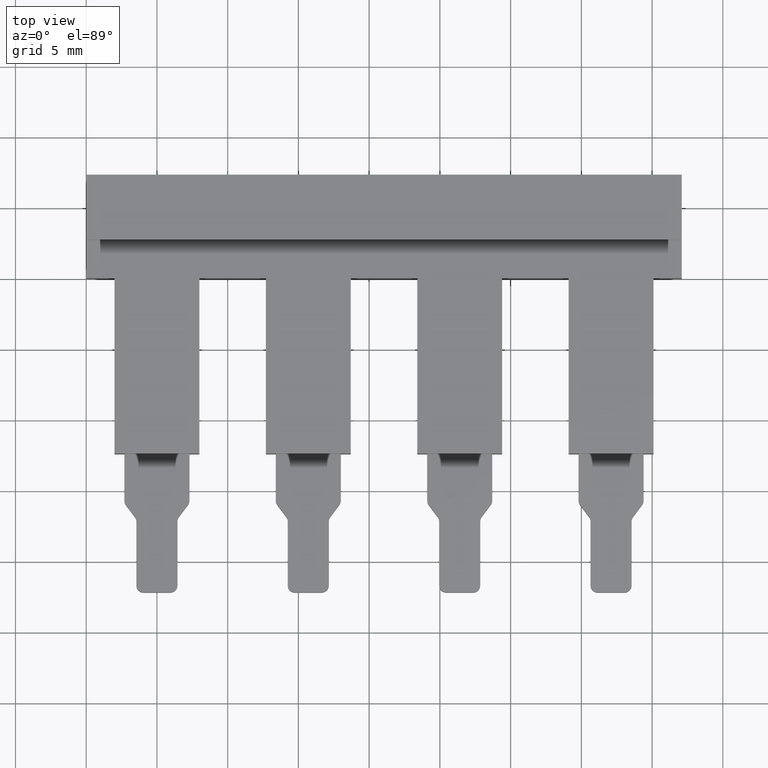
[diagram: clean part render]
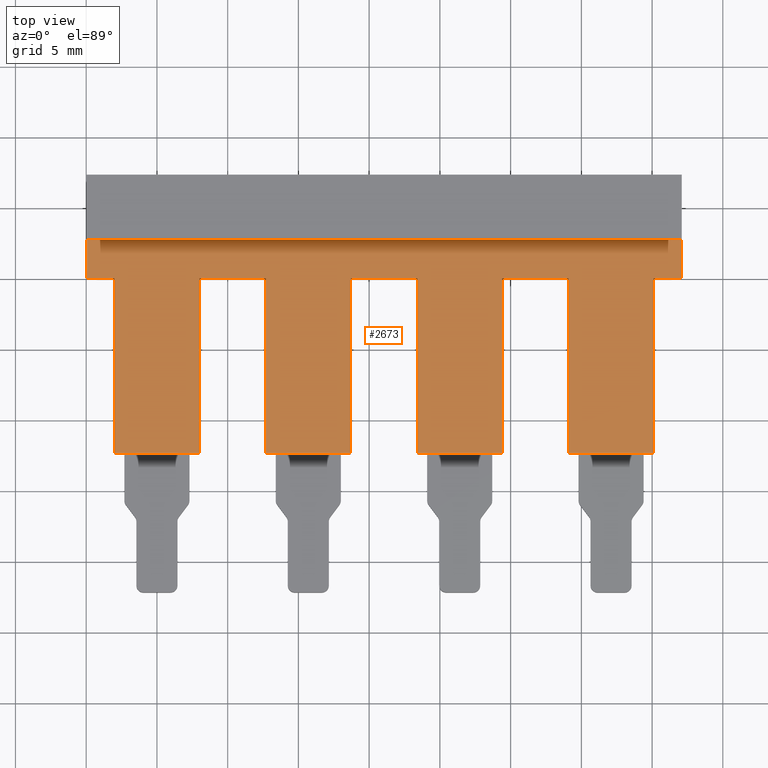
[diagram: same view with one face highlighted and labeled with its STEP entity id]
A machine part, top view. The second image highlights one B-rep face of the part: STEP entity #2673.
In plain terms, the highlighted planar face has unit normal (0, 0, 1).
Its self-contained STEP definition (entity closure, byte-faithful):
#549 = PLANE ( 'NONE',  #2332 ) ;
#550 = DIRECTION ( 'NONE',  ( 0.0000000000000000000, 0.0000000000000000000, 1.000000000000000000 ) ) ;
#555 = CARTESIAN_POINT ( 'NONE',  ( 29.39999999999999500, 4.173744683200197900E-015, 4.100000000000000500 ) ) ;
#560 = DIRECTION ( 'NONE',  ( 1.000000000000000000, 0.0000000000000000000, -0.0000000000000000000 ) ) ;
#587 = FACE_OUTER_BOUND ( 'NONE', #1447, .T. ) ;
#590 = CARTESIAN_POINT ( 'NONE',  ( 18.70000000000000300, -1.879018618104244700E-015, 4.100000000000000500 ) ) ;
#594 = DIRECTION ( 'NONE',  ( -3.016491377670779700E-016, 1.000000000000000000, -0.0000000000000000000 ) ) ;
#597 = LINE ( 'NONE', #602, #1990 ) ;
#598 = DIRECTION ( 'NONE',  ( 1.000000000000000000, 7.947176037020060600E-016, -0.0000000000000000000 ) ) ;
#602 = CARTESIAN_POINT ( 'NONE',  ( 42.09999999999999400, 7.300000000000006000, 4.100000000000000500 ) ) ;
#606 = LINE ( 'NONE', #617, #2003 ) ;
#607 = DIRECTION ( 'NONE',  ( -2.409338161078894500E-017, -1.000000000000000000, -0.0000000000000000000 ) ) ;
#609 = CARTESIAN_POINT ( 'NONE',  ( 34.10000000000000100, -12.49999999999999600, 4.100000000000000500 ) ) ;
#612 = DIRECTION ( 'NONE',  ( -1.000000000000000000, 0.0000000000000000000, 0.0000000000000000000 ) ) ;
#613 = DIRECTION ( 'NONE',  ( -0.0000000000000000000, -1.000000000000000000, -0.0000000000000000000 ) ) ;
#617 = CARTESIAN_POINT ( 'NONE',  ( 0.0000000000000000000, 7.299999999999999800, 4.100000000000000500 ) ) ;
#621 = CARTESIAN_POINT ( 'NONE',  ( 0.0000000000000000000, -12.40000000000000200, 4.099999999999999600 ) ) ;
#623 = CARTESIAN_POINT ( 'NONE',  ( 29.40000000000000200, -1.879018618104244700E-015, 4.100000000000000500 ) ) ;
#631 = DIRECTION ( 'NONE',  ( -2.775557561562890400E-016, 1.000000000000000000, -0.0000000000000000000 ) ) ;
#634 = LINE ( 'NONE', #647, #2071 ) ;
#635 = LINE ( 'NONE', #609, #2070 ) ;
#636 = LINE ( 'NONE', #623, #1998 ) ;
#640 = LINE ( 'NONE', #621, #2011 ) ;
#647 = CARTESIAN_POINT ( 'NONE',  ( 20.07069040994250000, -12.39999999999999900, 4.100000000000000500 ) ) ;
#672 = DIRECTION ( 'NONE',  ( -1.000000000000000000, 0.0000000000000000000, 0.0000000000000000000 ) ) ;
#975 = CARTESIAN_POINT ( 'NONE',  ( 40.10000000000000900, -12.39999999999999900, 4.100000000000000500 ) ) ;
#977 = CARTESIAN_POINT ( 'NONE',  ( 29.40000000000000900, -12.40000000000000000, 4.100000000000000500 ) ) ;
#978 = CARTESIAN_POINT ( 'NONE',  ( -8.794084287937965300E-017, 0.0000000000000000000, 4.100000000000000500 ) ) ;
#979 = CARTESIAN_POINT ( 'NONE',  ( 12.69999999999999900, -6.647324240316282100E-015, 4.100000000000000500 ) ) ;
#995 = CARTESIAN_POINT ( 'NONE',  ( -1.108295554096292100E-016, 2.699999999999997500, 4.100000000000000500 ) ) ;
#997 = CARTESIAN_POINT ( 'NONE',  ( 42.10000000000000100, 6.239800343088577500E-015, 4.100000000000000500 ) ) ;
#1013 = CARTESIAN_POINT ( 'NONE',  ( 8.000000000000000000, -3.735172737399429900E-015, 4.100000000000000500 ) ) ;
#1022 = CARTESIAN_POINT ( 'NONE',  ( 18.70000000000001000, -12.40000000000000200, 4.100000000000000500 ) ) ;
#1026 = CARTESIAN_POINT ( 'NONE',  ( 8.000000000000001800, -12.40000000000000200, 4.100000000000000500 ) ) ;
#1027 = CARTESIAN_POINT ( 'NONE',  ( 2.000000000000000400, 0.0000000000000000000, 4.100000000000000500 ) ) ;
#1031 = CARTESIAN_POINT ( 'NONE',  ( 23.39999999999999900, -12.40000000000000000, 4.100000000000000500 ) ) ;
#1034 = CARTESIAN_POINT ( 'NONE',  ( 42.09999999999999400, 2.700000000000006800, 4.100000000000000500 ) ) ;
#1035 = CARTESIAN_POINT ( 'NONE',  ( 23.39999999999999900, 9.223609349453271000E-016, 4.100000000000000500 ) ) ;
#1043 = CARTESIAN_POINT ( 'NONE',  ( 2.000000000000000000, -12.40000000000000200, 4.100000000000000500 ) ) ;
#1046 = CARTESIAN_POINT ( 'NONE',  ( 34.10000000000000100, -12.39999999999999900, 4.100000000000000500 ) ) ;
#1052 = CARTESIAN_POINT ( 'NONE',  ( 18.70000000000000300, 2.317590563905013500E-015, 4.100000000000000500 ) ) ;
#1054 = CARTESIAN_POINT ( 'NONE',  ( 12.69999999999999900, -12.40000000000000200, 4.100000000000000500 ) ) ;
#1055 = CARTESIAN_POINT ( 'NONE',  ( 40.09999999999999400, 6.029898802495384600E-015, 4.100000000000000500 ) ) ;
#1070 = CARTESIAN_POINT ( 'NONE',  ( 29.40000000000000200, 4.173744683200198700E-015, 4.100000000000000500 ) ) ;
#1097 = CARTESIAN_POINT ( 'NONE',  ( 34.10000000000000100, 2.778515054240512100E-015, 4.100000000000000500 ) ) ;
#1149 = DIRECTION ( 'NONE',  ( 1.000000000000000000, 7.947176037020060600E-016, -0.0000000000000000000 ) ) ;
#1153 = LINE ( 'NONE', #1173, #2026 ) ;
#1168 = DIRECTION ( 'NONE',  ( -1.000000000000000000, 0.0000000000000000000, 0.0000000000000000000 ) ) ;
#1169 = LINE ( 'NONE', #1171, #2013 ) ;
#1171 = CARTESIAN_POINT ( 'NONE',  ( 8.000000000000000000, -3.735172737399429900E-015, 4.100000000000000500 ) ) ;
#1173 = CARTESIAN_POINT ( 'NONE',  ( 9.370690409942499200, -12.40000000000000000, 4.100000000000000500 ) ) ;
#1177 = CARTESIAN_POINT ( 'NONE',  ( 18.70000000000000300, -1.879018618104244700E-015, 4.100000000000000500 ) ) ;
#1184 = LINE ( 'NONE', #1177, #2017 ) ;
#1187 = DIRECTION ( 'NONE',  ( -1.000000000000000000, -2.775557561562890400E-016, 0.0000000000000000000 ) ) ;
#1189 = LINE ( 'NONE', #1193, #1986 ) ;
#1191 = DIRECTION ( 'NONE',  ( -0.0000000000000000000, -1.000000000000000000, -0.0000000000000000000 ) ) ;
#1192 = LINE ( 'NONE', #1216, #2020 ) ;
#1193 = CARTESIAN_POINT ( 'NONE',  ( 12.69999999999999900, -12.50000000000000000, 4.100000000000000500 ) ) ;
#1195 = DIRECTION ( 'NONE',  ( -1.387778780781445900E-016, 1.000000000000000000, -0.0000000000000000000 ) ) ;
#1198 = LINE ( 'NONE', #1220, #2007 ) ;
#1200 = DIRECTION ( 'NONE',  ( -2.775557561562890400E-016, 1.000000000000000000, -0.0000000000000000000 ) ) ;
#1204 = DIRECTION ( 'NONE',  ( 1.000000000000000000, 2.775557561562890400E-016, -0.0000000000000000000 ) ) ;
#1208 = DIRECTION ( 'NONE',  ( -0.0000000000000000000, -1.000000000000000000, -0.0000000000000000000 ) ) ;
#1211 = CARTESIAN_POINT ( 'NONE',  ( 18.70000000000000600, -3.735172737399429900E-015, 4.100000000000000500 ) ) ;
#1216 = CARTESIAN_POINT ( 'NONE',  ( 2.000000000000000000, -12.50000000000000000, 4.100000000000000500 ) ) ;
#1220 = CARTESIAN_POINT ( 'NONE',  ( 31.39999999999999900, 4.728856195512776100E-015, 4.100000000000000500 ) ) ;
#1222 = LINE ( 'NONE', #1225, #1980 ) ;
#1224 = LINE ( 'NONE', #1211, #2006 ) ;
#1225 = CARTESIAN_POINT ( 'NONE',  ( 29.39999999999999500, 2.700000000000004600, 4.100000000000000500 ) ) ;
#1232 = LINE ( 'NONE', #1269, #2001 ) ;
#1237 = DIRECTION ( 'NONE',  ( -1.000000000000000000, 0.0000000000000000000, 0.0000000000000000000 ) ) ;
#1238 = CARTESIAN_POINT ( 'NONE',  ( 40.10000000000000100, -2.286449880905931700E-017, 4.100000000000000500 ) ) ;
#1243 = LINE ( 'NONE', #1245, #2021 ) ;
#1245 = CARTESIAN_POINT ( 'NONE',  ( 42.10000000000000100, 6.585010314807962100E-015, 4.100000000000000500 ) ) ;
#1247 = CARTESIAN_POINT ( 'NONE',  ( -1.329309590057500000, -12.40000000000000200, 4.100000000000000500 ) ) ;
#1248 = DIRECTION ( 'NONE',  ( 1.000000000000000000, 0.0000000000000000000, -0.0000000000000000000 ) ) ;
#1256 = LINE ( 'NONE', #1247, #2029 ) ;
#1258 = LINE ( 'NONE', #1238, #1996 ) ;
#1259 = DIRECTION ( 'NONE',  ( -2.775557561562890400E-016, 1.000000000000000000, -0.0000000000000000000 ) ) ;
#1265 = DIRECTION ( 'NONE',  ( 1.000000000000000000, 2.775557561562890400E-016, -0.0000000000000000000 ) ) ;
#1269 = CARTESIAN_POINT ( 'NONE',  ( 0.0000000000000000000, 0.0000000000000000000, 4.100000000000000500 ) ) ;
#1270 = LINE ( 'NONE', #1271, #1978 ) ;
#1271 = CARTESIAN_POINT ( 'NONE',  ( 23.39999999999999900, -12.49999999999999800, 4.100000000000000500 ) ) ;
#1273 = DIRECTION ( 'NONE',  ( -0.0000000000000000000, -1.000000000000000000, -0.0000000000000000000 ) ) ;
#1288 = LINE ( 'NONE', #590, #2019 ) ;
#1291 = VERTEX_POINT ( 'NONE', #975 ) ;
#1293 = VERTEX_POINT ( 'NONE', #995 ) ;
#1294 = VERTEX_POINT ( 'NONE', #977 ) ;
#1299 = VERTEX_POINT ( 'NONE', #978 ) ;
#1300 = VERTEX_POINT ( 'NONE', #979 ) ;
#1301 = VERTEX_POINT ( 'NONE', #997 ) ;
#1317 = VERTEX_POINT ( 'NONE', #1035 ) ;
#1320 = VERTEX_POINT ( 'NONE', #1046 ) ;
#1322 = VERTEX_POINT ( 'NONE', #1013 ) ;
#1325 = VERTEX_POINT ( 'NONE', #1070 ) ;
#1327 = VERTEX_POINT ( 'NONE', #1026 ) ;
#1329 = VERTEX_POINT ( 'NONE', #1052 ) ;
#1332 = VERTEX_POINT ( 'NONE', #1027 ) ;
#1336 = VERTEX_POINT ( 'NONE', #1054 ) ;
#1341 = VERTEX_POINT ( 'NONE', #1055 ) ;
#1342 = VERTEX_POINT ( 'NONE', #1022 ) ;
#1347 = VERTEX_POINT ( 'NONE', #1031 ) ;
#1351 = VERTEX_POINT ( 'NONE', #1034 ) ;
#1352 = VERTEX_POINT ( 'NONE', #1043 ) ;
#1373 = VERTEX_POINT ( 'NONE', #1097 ) ;
#1447 = EDGE_LOOP ( 'NONE', ( #1871, #1888, #1905, #1859, #1891, #1932, #1941, #1955, #1972, #1911, #1860, #1893, #1869, #1894, #1853, #1933, #1973, #1913, #1942, #1957 ) ) ;
#1853 = ORIENTED_EDGE ( 'NONE', *, *, #2422, .F. ) ;
#1859 = ORIENTED_EDGE ( 'NONE', *, *, #2419, .T. ) ;
#1860 = ORIENTED_EDGE ( 'NONE', *, *, #2391, .T. ) ;
#1869 = ORIENTED_EDGE ( 'NONE', *, *, #2400, .T. ) ;
#1871 = ORIENTED_EDGE ( 'NONE', *, *, #2413, .T. ) ;
#1888 = ORIENTED_EDGE ( 'NONE', *, *, #2407, .T. ) ;
#1891 = ORIENTED_EDGE ( 'NONE', *, *, #2385, .T. ) ;
#1893 = ORIENTED_EDGE ( 'NONE', *, *, #2421, .T. ) ;
#1894 = ORIENTED_EDGE ( 'NONE', *, *, #2380, .T. ) ;
#1905 = ORIENTED_EDGE ( 'NONE', *, *, #2372, .F. ) ;
#1911 = ORIENTED_EDGE ( 'NONE', *, *, #2414, .T. ) ;
#1913 = ORIENTED_EDGE ( 'NONE', *, *, #2381, .T. ) ;
#1932 = ORIENTED_EDGE ( 'NONE', *, *, #2427, .T. ) ;
#1933 = ORIENTED_EDGE ( 'NONE', *, *, #2378, .T. ) ;
#1941 = ORIENTED_EDGE ( 'NONE', *, *, #2433, .F. ) ;
#1942 = ORIENTED_EDGE ( 'NONE', *, *, #2401, .F. ) ;
#1955 = ORIENTED_EDGE ( 'NONE', *, *, #2402, .T. ) ;
#1957 = ORIENTED_EDGE ( 'NONE', *, *, #2382, .T. ) ;
#1972 = ORIENTED_EDGE ( 'NONE', *, *, #2399, .T. ) ;
#1973 = ORIENTED_EDGE ( 'NONE', *, *, #2376, .T. ) ;
#1978 = VECTOR ( 'NONE', #1273, 1000.000000000000000 ) ;
#1980 = VECTOR ( 'NONE', #1187, 1000.000000000000000 ) ;
#1986 = VECTOR ( 'NONE', #1208, 1000.000000000000000 ) ;
#1990 = VECTOR ( 'NONE', #594, 1000.000000000000000 ) ;
#1996 = VECTOR ( 'NONE', #1259, 1000.000000000000000 ) ;
#1998 = VECTOR ( 'NONE', #631, 1000.000000000000000 ) ;
#2001 = VECTOR ( 'NONE', #1248, 1000.000000000000000 ) ;
#2003 = VECTOR ( 'NONE', #607, 1000.000000000000000 ) ;
#2006 = VECTOR ( 'NONE', #1200, 1000.000000000000000 ) ;
#2007 = VECTOR ( 'NONE', #1204, 1000.000000000000000 ) ;
#2011 = VECTOR ( 'NONE', #612, 1000.000000000000000 ) ;
#2013 = VECTOR ( 'NONE', #1195, 1000.000000000000000 ) ;
#2017 = VECTOR ( 'NONE', #1149, 1000.000000000000000 ) ;
#2019 = VECTOR ( 'NONE', #598, 1000.000000000000000 ) ;
#2020 = VECTOR ( 'NONE', #1191, 1000.000000000000000 ) ;
#2021 = VECTOR ( 'NONE', #1265, 1000.000000000000000 ) ;
#2026 = VECTOR ( 'NONE', #1168, 1000.000000000000000 ) ;
#2029 = VECTOR ( 'NONE', #1237, 1000.000000000000000 ) ;
#2070 = VECTOR ( 'NONE', #613, 1000.000000000000000 ) ;
#2071 = VECTOR ( 'NONE', #672, 1000.000000000000000 ) ;
#2332 = AXIS2_PLACEMENT_3D ( 'NONE', #555, #550, #560 ) ;
#2372 = EDGE_CURVE ( 'NONE', #1294, #1347, #1153, .T. ) ;
#2376 = EDGE_CURVE ( 'NONE', #1322, #1300, #1184, .T. ) ;
#2378 = EDGE_CURVE ( 'NONE', #1327, #1322, #1169, .T. ) ;
#2380 = EDGE_CURVE ( 'NONE', #1332, #1352, #1192, .T. ) ;
#2381 = EDGE_CURVE ( 'NONE', #1300, #1336, #1189, .T. ) ;
#2382 = EDGE_CURVE ( 'NONE', #1342, #1329, #1224, .T. ) ;
#2385 = EDGE_CURVE ( 'NONE', #1325, #1373, #1198, .T. ) ;
#2391 = EDGE_CURVE ( 'NONE', #1351, #1293, #1222, .T. ) ;
#2399 = EDGE_CURVE ( 'NONE', #1341, #1301, #1243, .T. ) ;
#2400 = EDGE_CURVE ( 'NONE', #1299, #1332, #1232, .T. ) ;
#2401 = EDGE_CURVE ( 'NONE', #1342, #1336, #1256, .T. ) ;
#2402 = EDGE_CURVE ( 'NONE', #1291, #1341, #1258, .T. ) ;
#2407 = EDGE_CURVE ( 'NONE', #1317, #1347, #1270, .T. ) ;
#2413 = EDGE_CURVE ( 'NONE', #1329, #1317, #1288, .T. ) ;
#2414 = EDGE_CURVE ( 'NONE', #1301, #1351, #597, .T. ) ;
#2419 = EDGE_CURVE ( 'NONE', #1294, #1325, #636, .T. ) ;
#2421 = EDGE_CURVE ( 'NONE', #1293, #1299, #606, .T. ) ;
#2422 = EDGE_CURVE ( 'NONE', #1327, #1352, #640, .T. ) ;
#2427 = EDGE_CURVE ( 'NONE', #1373, #1320, #635, .T. ) ;
#2433 = EDGE_CURVE ( 'NONE', #1291, #1320, #634, .T. ) ;
#2673 = ADVANCED_FACE ( 'NONE', ( #587 ), #549, .T. ) ;